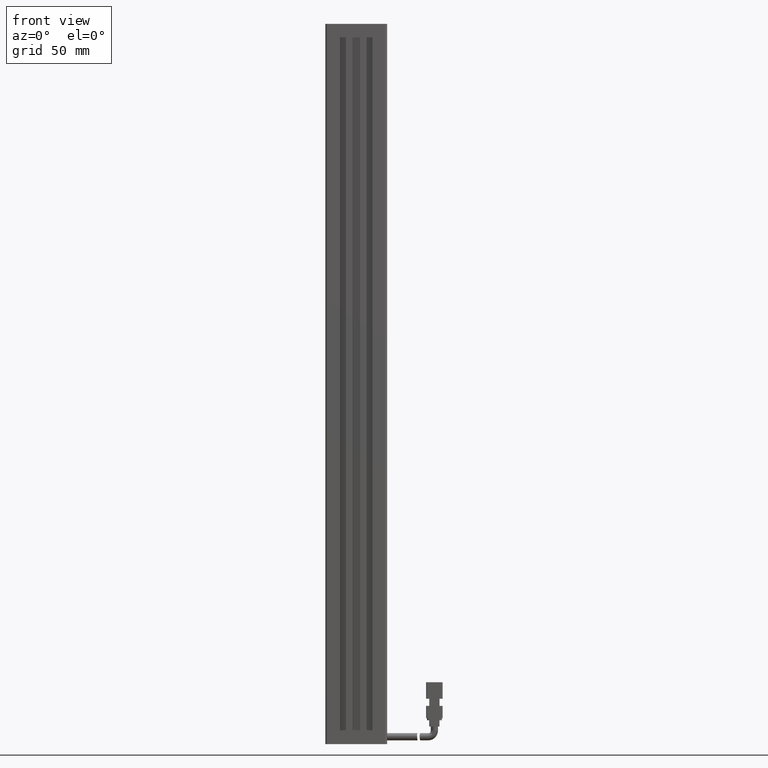
[diagram: clean part render]
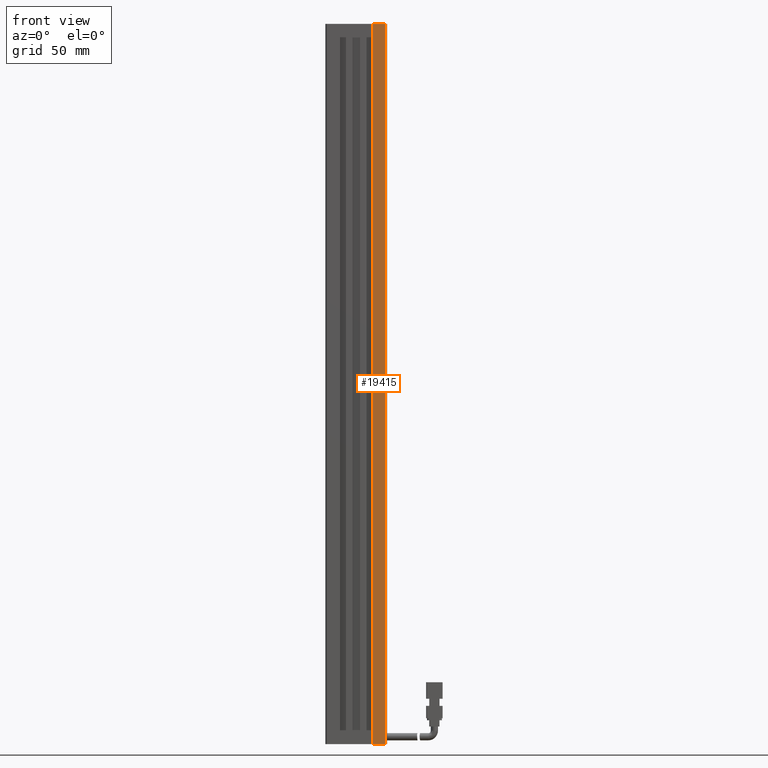
[diagram: same view with one face highlighted and labeled with its STEP entity id]
A machine part, front view. The second image highlights one B-rep face of the part: STEP entity #19415.
In plain terms, the highlighted planar face has unit normal (0, 1, -0).
Its self-contained STEP definition (entity closure, byte-faithful):
#1249 = LINE ( 'NONE', #24505, #27421 ) ;
#1509 = CARTESIAN_POINT ( 'NONE',  ( 40.92537974683542500, 10.69594479660387000, 60.00000000000001400 ) ) ;
#2458 = LINE ( 'NONE', #33764, #30239 ) ;
#2501 = DIRECTION ( 'NONE',  ( 0.0000000000000000000, 0.0000000000000000000, 1.000000000000000000 ) ) ;
#2850 = LINE ( 'NONE', #1509, #44486 ) ;
#4574 = EDGE_CURVE ( 'NONE', #54332, #21584, #12504, .T. ) ;
#8064 = CARTESIAN_POINT ( 'NONE',  ( 48.92537974683541800, 10.69594479660387000, -290.0000000000000600 ) ) ;
#12504 = LINE ( 'NONE', #48649, #40263 ) ;
#14016 = CARTESIAN_POINT ( 'NONE',  ( 40.92537974683542500, 10.69594479660387300, 60.00000000000001400 ) ) ;
#14284 = DIRECTION ( 'NONE',  ( 1.000000000000000000, 0.0000000000000000000, 0.0000000000000000000 ) ) ;
#14832 = ORIENTED_EDGE ( 'NONE', *, *, #35021, .F. ) ;
#17309 = DIRECTION ( 'NONE',  ( 1.000000000000000000, 0.0000000000000000000, 0.0000000000000000000 ) ) ;
#17486 = DIRECTION ( 'NONE',  ( -0.0000000000000000000, -0.0000000000000000000, -1.000000000000000000 ) ) ;
#19230 = DIRECTION ( 'NONE',  ( -1.000000000000000000, 3.614007241618344300E-016, 0.0000000000000000000 ) ) ;
#19415 = ADVANCED_FACE ( 'NONE', ( #57011 ), #60622, .F. ) ;
#21584 = VERTEX_POINT ( 'NONE', #51230 ) ;
#24505 = CARTESIAN_POINT ( 'NONE',  ( 40.92537974683542500, 10.69594479660387000, -290.0000000000000600 ) ) ;
#27421 = VECTOR ( 'NONE', #14284, 1000.000000000000000 ) ;
#29126 = ORIENTED_EDGE ( 'NONE', *, *, #4574, .F. ) ;
#29465 = ORIENTED_EDGE ( 'NONE', *, *, #64937, .T. ) ;
#30239 = VECTOR ( 'NONE', #2501, 1000.000000000000000 ) ;
#30283 = CARTESIAN_POINT ( 'NONE',  ( 48.92537974683541800, 10.69594479660387000, 60.00000000000001400 ) ) ;
#33764 = CARTESIAN_POINT ( 'NONE',  ( 48.92537974683541800, 10.69594479660387000, 60.00000000000001400 ) ) ;
#35021 = EDGE_CURVE ( 'NONE', #58089, #53305, #2458, .T. ) ;
#40263 = VECTOR ( 'NONE', #17486, 1000.000000000000000 ) ;
#44486 = VECTOR ( 'NONE', #17309, 1000.000000000000000 ) ;
#48649 = CARTESIAN_POINT ( 'NONE',  ( 54.92537974683542500, 10.69594479660386800, 60.00000000000001400 ) ) ;
#50401 = DIRECTION ( 'NONE',  ( 3.614007241618344300E-016, 1.000000000000000000, -0.0000000000000000000 ) ) ;
#51145 = CARTESIAN_POINT ( 'NONE',  ( 54.92537974683542500, 10.69594479660386800, 60.00000000000001400 ) ) ;
#51230 = CARTESIAN_POINT ( 'NONE',  ( 54.92537974683542500, 10.69594479660386800, -290.0000000000000600 ) ) ;
#51957 = AXIS2_PLACEMENT_3D ( 'NONE', #14016, #50401, #19230 ) ;
#53305 = VERTEX_POINT ( 'NONE', #30283 ) ;
#53474 = EDGE_CURVE ( 'NONE', #53305, #54332, #2850, .T. ) ;
#54332 = VERTEX_POINT ( 'NONE', #51145 ) ;
#57011 = FACE_OUTER_BOUND ( 'NONE', #60524, .T. ) ;
#57365 = ORIENTED_EDGE ( 'NONE', *, *, #53474, .F. ) ;
#58089 = VERTEX_POINT ( 'NONE', #8064 ) ;
#60524 = EDGE_LOOP ( 'NONE', ( #29126, #57365, #14832, #29465 ) ) ;
#60622 = PLANE ( 'NONE',  #51957 ) ;
#64937 = EDGE_CURVE ( 'NONE', #58089, #21584, #1249, .T. ) ;